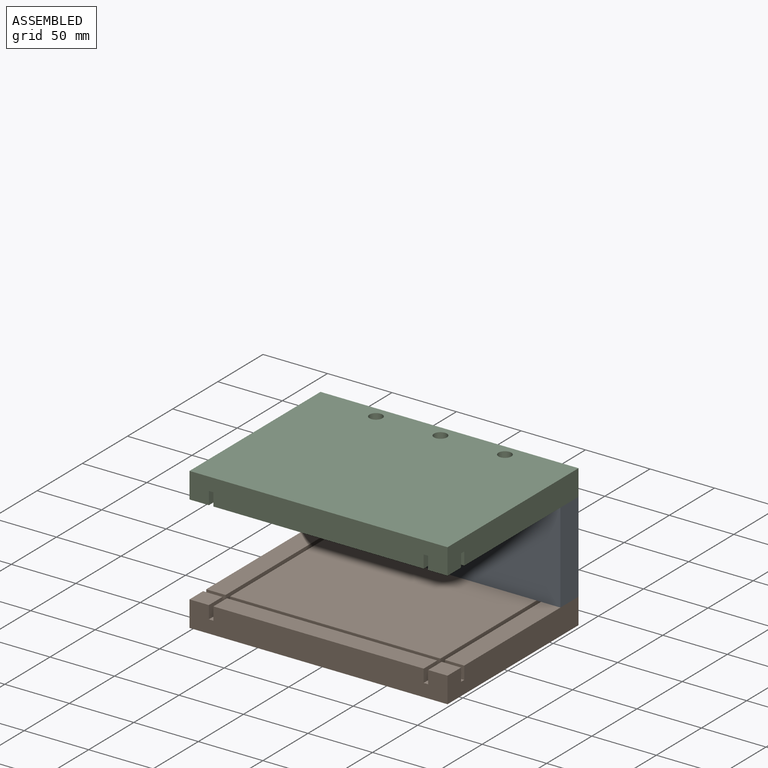
[diagram: assembled view]
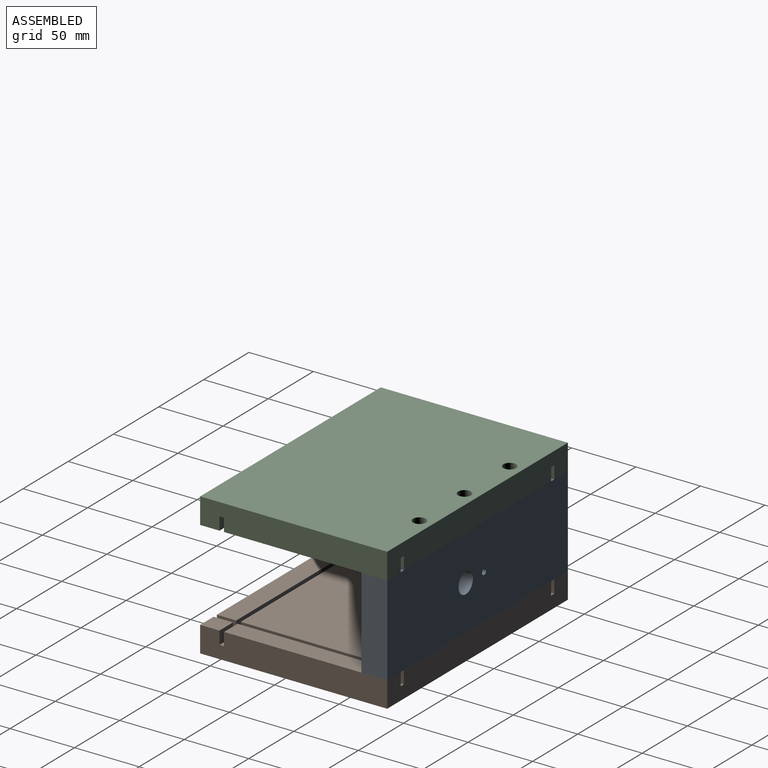
[diagram: assembled view, second angle]
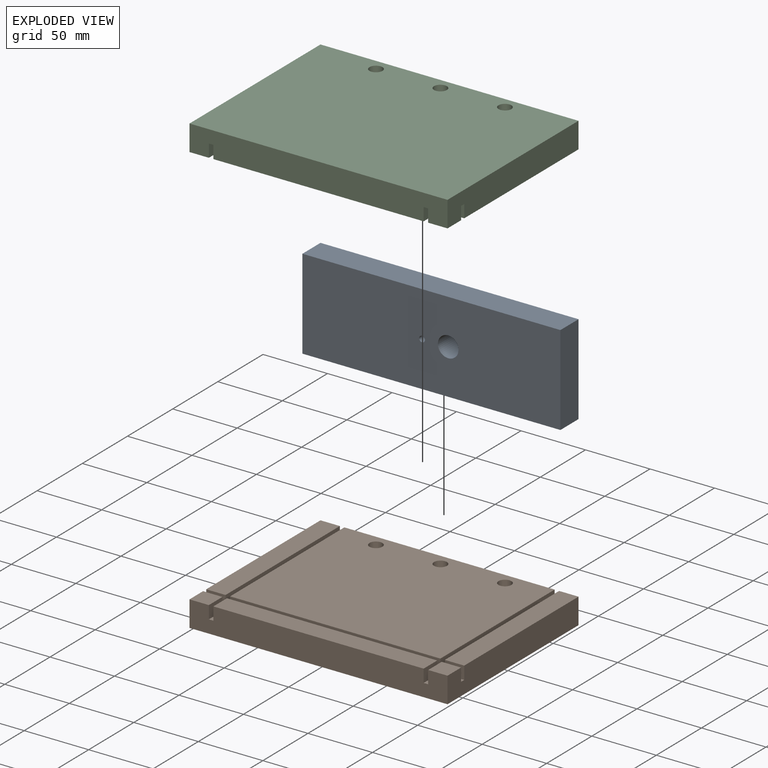
[diagram: exploded view]
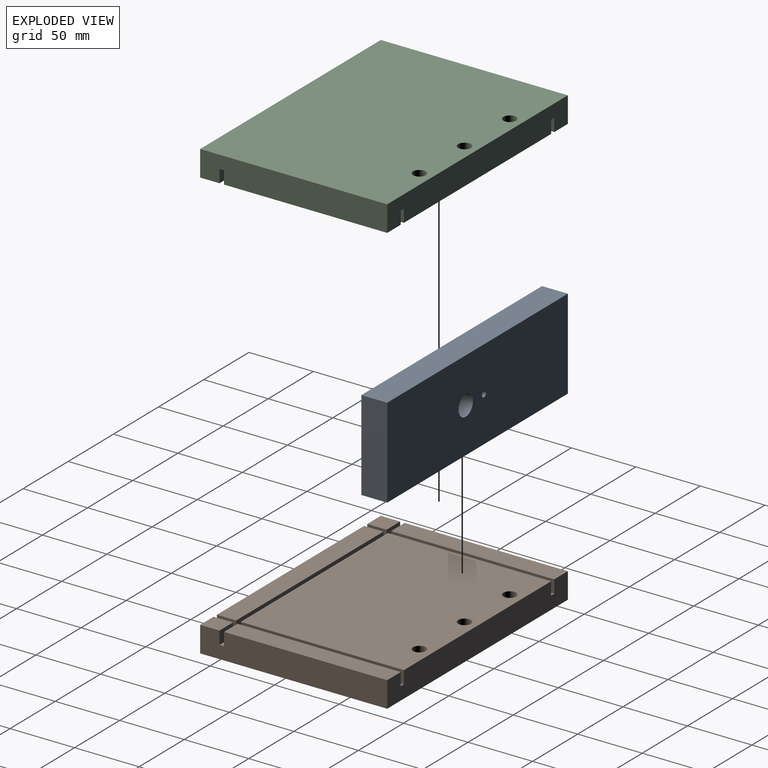
[diagram: exploded view, second angle]
ASSEMBLY  parts=3 mates=2
PART A: 8 faces, bbox 200x20x70 mm
  f0: plane 70x20mm, normal (-1,0,0), area 1400mm2, adj f1,f4,f6,f7
  f1: plane 200x20mm, normal (0,0,-1), area 4000mm2, adj f0,f2,f6,f7
  f2: plane 70x20mm, normal (1,0,0), area 1400mm2, adj f1,f4,f6,f7
  f3: cylinder r=8mm len=20mm, axis (0,1,0), area 1005.3mm2, adj f6,f7
  f4: plane 200x20mm, normal (0,0,1), area 4000mm2, adj f0,f2,f6,f7
  f5: cylinder r=2.25mm len=20mm, axis (0,1,0), area 282.7mm2, adj f6,f7
  f6: plane 200x70mm, normal (0,-1,0), area 13783mm2, adj f0,f1,f2,f3,f4,f5
  f7: plane 200x70mm, normal (0,1,0), area 13783mm2, adj f0,f1,f2,f3,f4,f5
PART B: 29 faces, bbox 200x145x20 mm
  f0: plane 126.5x15mm, normal (0,0,1), area 1897.5mm2, adj f4,f7,f10,f23
  f1: plane 163x126.5mm, normal (0,0,1), area 20383.9mm2, adj f4,f8,f18,f19,f20,f21,f24
  f2: plane 15x15mm, normal (0,0,1), area 225mm2, adj f5,f10,f12,f27
  f3: plane 163x15mm, normal (0,0,1), area 2445mm2, adj f6,f12,f26,f28
  f4: plane 200x20mm, normal (0,1,0), area 3930mm2, adj f0,f1,f9,f10,f11,f14,f17,f21
  f5: plane 15x10mm, normal (0,1,0), area 150mm2, adj f2,f10,f17,f27
  f6: plane 163x10mm, normal (0,1,0), area 1630mm2, adj f3,f17,f26,f28
  f7: plane 15x10mm, normal (0,-1,0), area 150mm2, adj f0,f10,f17,f23
  f8: plane 163x10mm, normal (0,-1,0), area 1630mm2, adj f1,f17,f21,f24
  f9: plane 126.5x15mm, normal (0,0,1), area 1897.5mm2, adj f4,f11,f16,f22
  f10: plane 145x20mm, normal (1,0,0), area 2865mm2, adj f0,f2,f4,f5,f7,f12,f14,f17
  f11: plane 145x20mm, normal (-1,0,0), area 2865mm2, adj f4,f9,f12,f13,f14,f15,f16,f17
  f12: plane 200x20mm, normal (0,-1,0), area 3930mm2, adj f2,f3,f10,f11,f13,f14,f17,f25
  f13: plane 15x15mm, normal (0,0,1), area 225mm2, adj f11,f12,f15,f25
  f14: plane 200x145mm, normal (0,0,-1), area 28764.4mm2, adj f4,f10,f11,f12,f18,f19,f20
  f15: plane 15x10mm, normal (0,1,0), area 150mm2, adj f11,f13,f17,f25
  f16: plane 15x10mm, normal (0,-1,0), area 150mm2, adj f9,f11,f17,f22
  f17: plane 200x145mm, normal (0,0,1), area 1690.5mm2, adj f4,f5,f6,f7,f8,f10,f11,f12
  f18: cylinder r=5mm len=20mm, axis (0,0,-1), area 628.3mm2, adj f1,f14
  f19: cylinder r=5mm len=20mm, axis (0,0,-1), area 628.3mm2, adj f1,f14
  f20: cylinder r=5mm len=20mm, axis (0,0,-1), area 628.3mm2, adj f1,f14
  f21: plane 126.5x10mm, normal (-1,0,0), area 1265mm2, adj f1,f4,f8,f17
  f22: plane 126.5x10mm, normal (1,0,0), area 1265mm2, adj f4,f9,f16,f17
  f23: plane 126.5x10mm, normal (-1,0,0), area 1265mm2, adj f0,f4,f7,f17
  f24: plane 126.5x10mm, normal (1,0,0), area 1265mm2, adj f1,f4,f8,f17
  f25: plane 15x10mm, normal (1,0,0), area 150mm2, adj f12,f13,f15,f17
  f26: plane 15x10mm, normal (-1,0,0), area 150mm2, adj f3,f6,f12,f17
  f27: plane 15x10mm, normal (-1,0,0), area 150mm2, adj f2,f5,f12,f17
  f28: plane 15x10mm, normal (1,0,0), area 150mm2, adj f3,f6,f12,f17
PART C: same geometry as B
PLACE A rot(axis=(0,1,0),180deg) t=(-86.81,-149.26,-185.91)mm
PLACE B t=(-83.45,-257.41,-228.14)mm
PLACE C rot(axis=(0,1,0),180deg) t=(-78.28,-257.41,-118.14)mm
MATE fastened C.f1 <-> A.f1  axis (0,0,-1) through (-80.86,-149.26,-138.14)mm
MATE fastened A.f4 <-> B.f1  axis (0,0,-1) through (-80.86,-149.26,-208.14)mm
